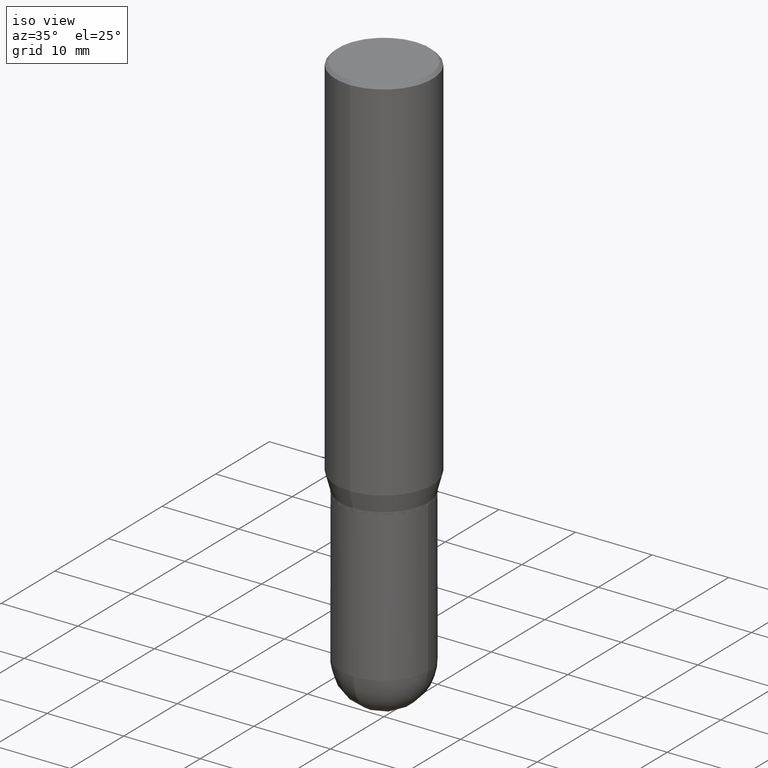
[diagram: clean part render]
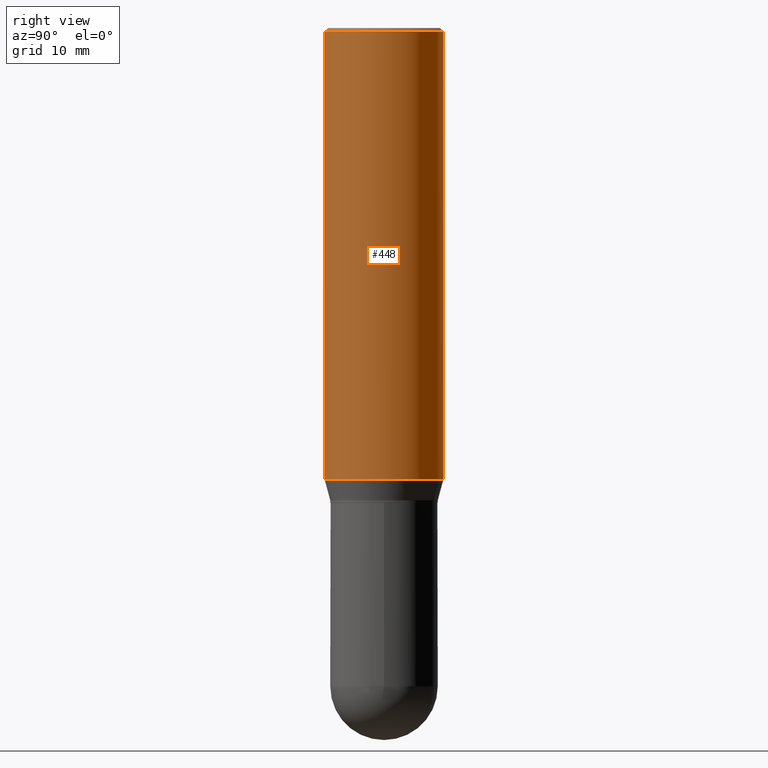
[diagram: tour spotlight — one face highlighted and labeled with its STEP entity id]
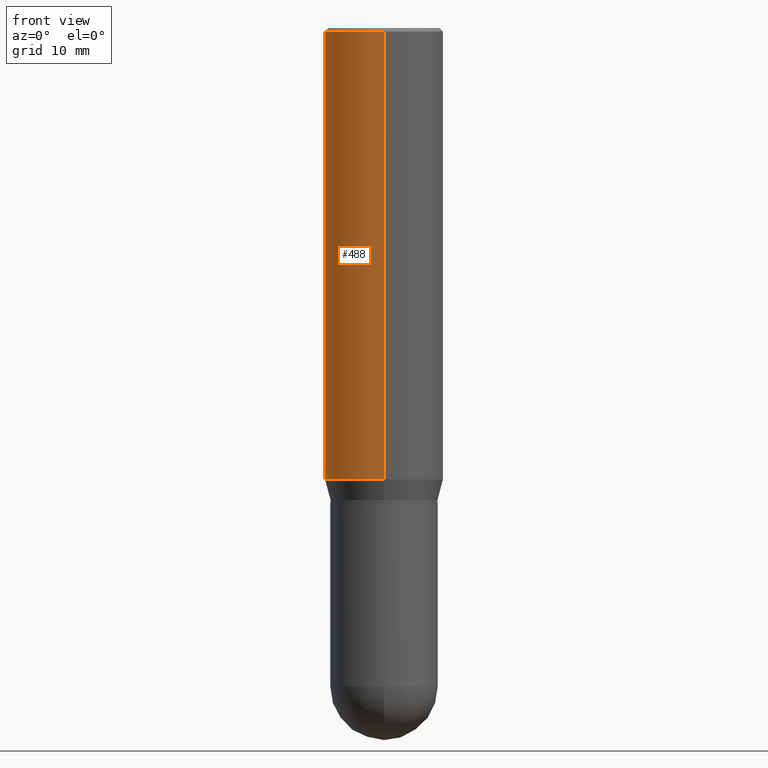
[diagram: tour spotlight — one face highlighted and labeled with its STEP entity id]
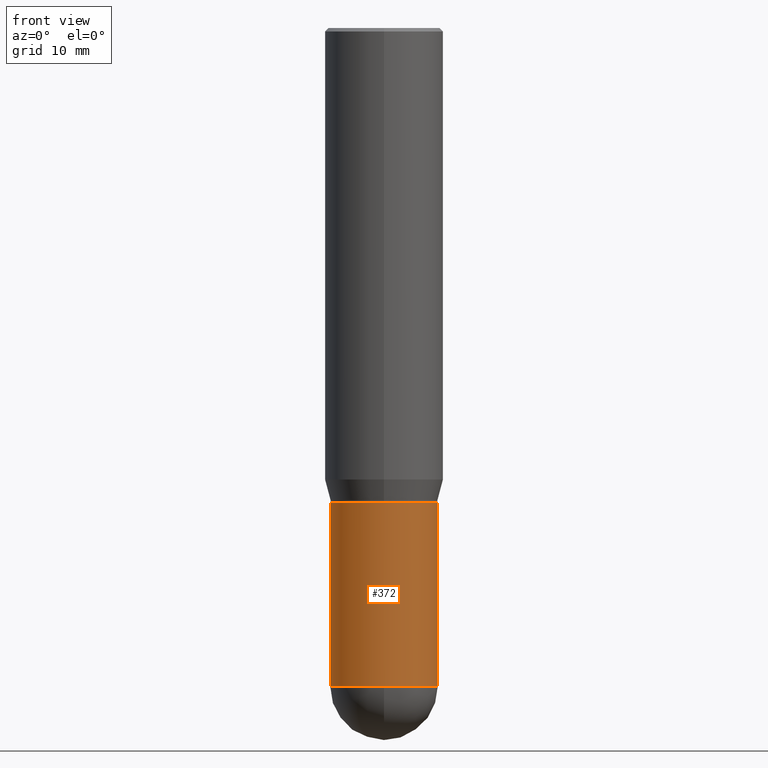
[diagram: tour spotlight — one face highlighted and labeled with its STEP entity id]
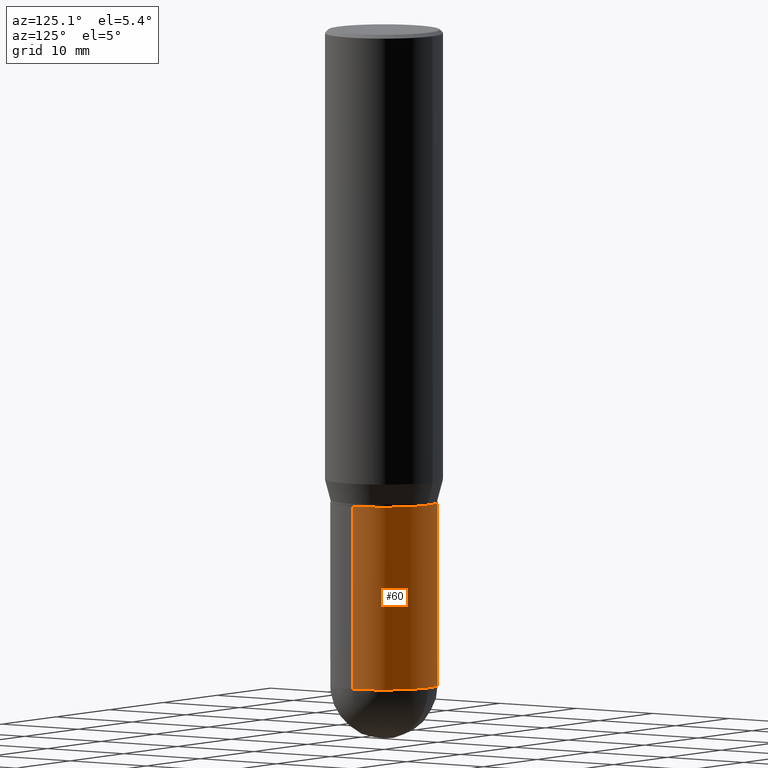
[diagram: tour spotlight — one face highlighted and labeled with its STEP entity id]
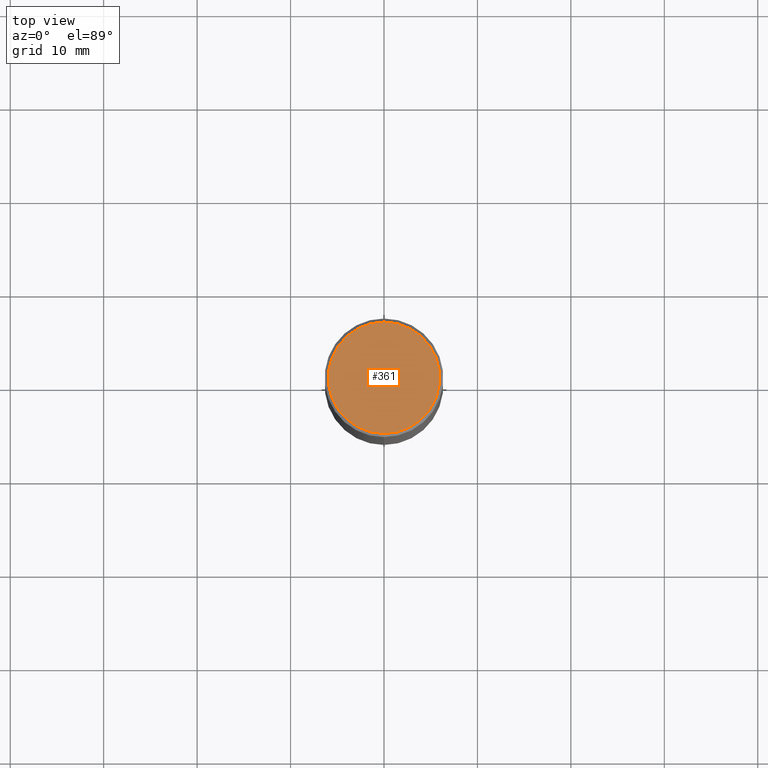
[diagram: tour spotlight — one face highlighted and labeled with its STEP entity id]
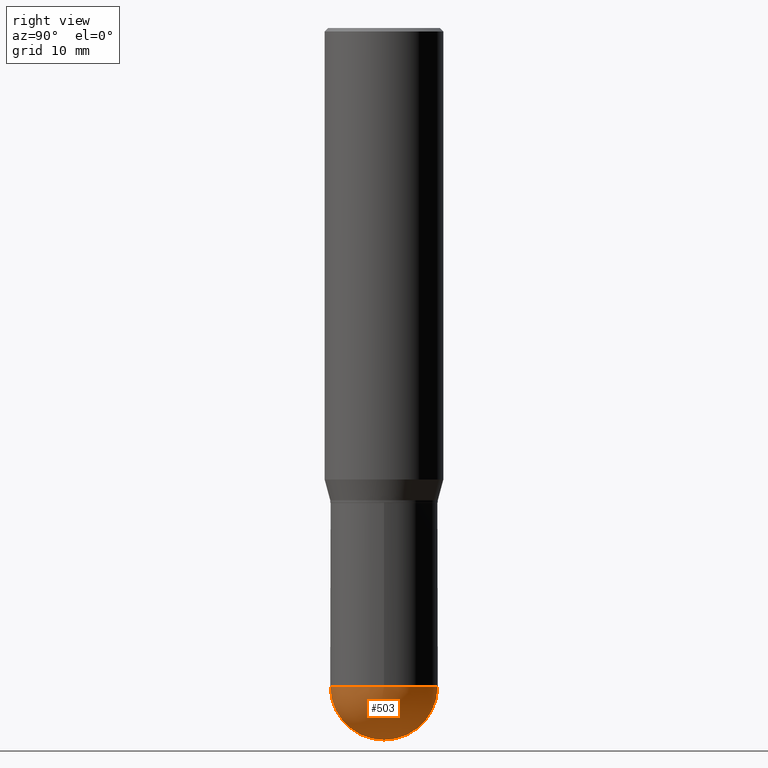
[diagram: tour spotlight — one face highlighted and labeled with its STEP entity id]
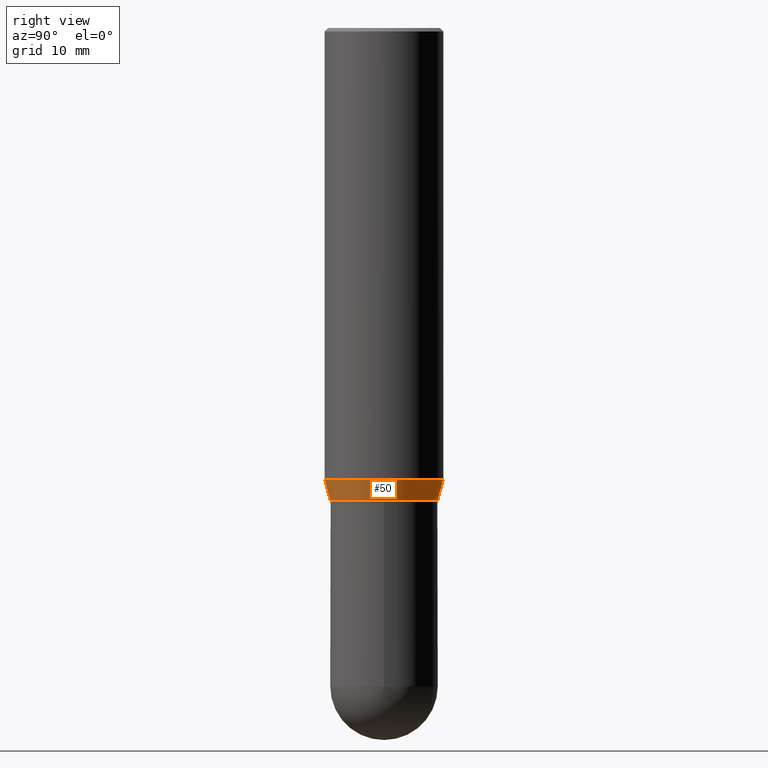
[diagram: tour spotlight — one face highlighted and labeled with its STEP entity id]
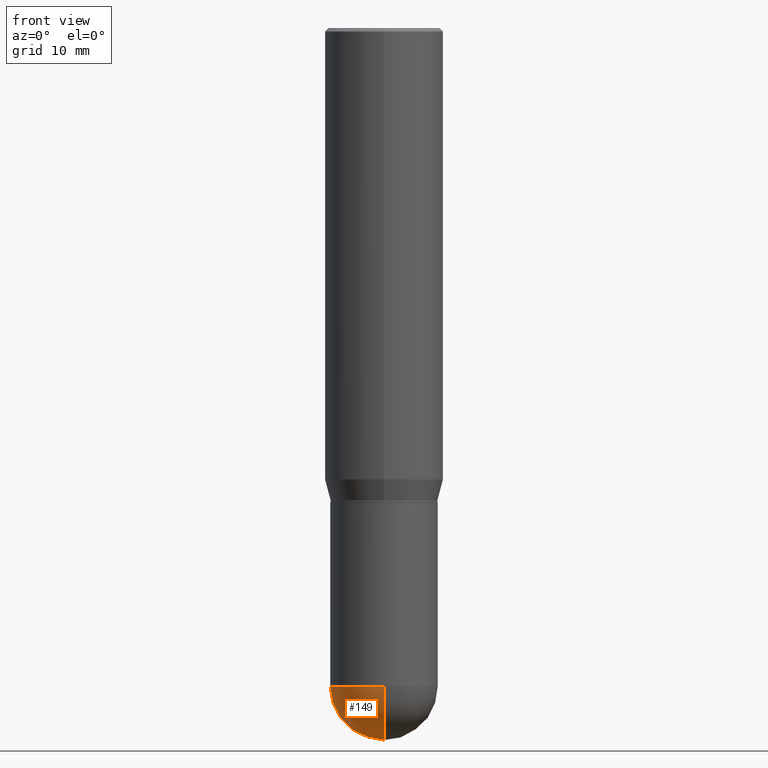
[diagram: tour spotlight — one face highlighted and labeled with its STEP entity id]
A machine part: a face-by-face anatomy tour. The part has 17 B-rep faces; the first image is the clean iso view, then the 8 largest visible faces are spotlighted one at a time (largest first), each with its STEP entity span.

Face 1 — right view, entity #448. In plain terms, the highlighted cylindrical surface (partial cylindrical patch) has radius 6.35 mm, axis along (-0, 0, 1).
Definition (entity closure, byte-faithful):
#14 = EDGE_LOOP ( 'NONE', ( #251, #129, #88, #284 ) ) ;
#38 = DIRECTION ( 'NONE',  ( -2.445835289349632530E-29, 3.490956514092661325E-15, 1.000000000000000000 ) ) ;
#45 = FACE_OUTER_BOUND ( 'NONE', #14, .T. ) ;
#66 = LINE ( 'NONE', #221, #108 ) ;
#69 = CARTESIAN_POINT ( 'NONE',  ( -1.745740669421565889E-15, -0.2500000000000000555, -0.01499999999999927953 ) ) ;
#87 = CARTESIAN_POINT ( 'NONE',  ( 4.653161058064362785E-29, -6.641486848074505255E-15, -1.902483408562510414 ) ) ;
#88 = ORIENTED_EDGE ( 'NONE', *, *, #473, .F. ) ;
#108 = VECTOR ( 'NONE', #507, 39.37007874015748143 ) ;
#109 = EDGE_CURVE ( 'NONE', #135, #319, #418, .T. ) ;
#112 = CARTESIAN_POINT ( 'NONE',  ( 1.776356839400296613E-15, 0.2499999999999933664, -1.902483408562511302 ) ) ;
#116 = CARTESIAN_POINT ( 'NONE',  ( 1.776356839400250267E-15, 0.2500000000000000000, -8.727391285231653312E-16 ) ) ;
#117 = AXIS2_PLACEMENT_3D ( 'NONE', #87, #275, #167 ) ;
#118 = CYLINDRICAL_SURFACE ( 'NONE', #306, 0.2500000000000000000 ) ;
#121 = DIRECTION ( 'NONE',  ( -2.445835289349632530E-29, 3.490956514092661325E-15, 1.000000000000000000 ) ) ;
#129 = ORIENTED_EDGE ( 'NONE', *, *, #109, .T. ) ;
#131 = EDGE_CURVE ( 'NONE', #313, #170, #66, .T. ) ;
#135 = VERTEX_POINT ( 'NONE', #112 ) ;
#167 = DIRECTION ( 'NONE',  ( -6.982962677686265922E-15, -1.000000000000000000, 3.278217592397115862E-15 ) ) ;
#170 = VERTEX_POINT ( 'NONE', #69 ) ;
#203 = AXIS2_PLACEMENT_3D ( 'NONE', #272, #121, #432 ) ;
#220 = CARTESIAN_POINT ( 'NONE',  ( -1.745740669421519543E-15, -0.2500000000000066058, -1.902483408562509748 ) ) ;
#221 = CARTESIAN_POINT ( 'NONE',  ( -1.745740669421566480E-15, -0.2500000000000000000, 8.727391285231653312E-16 ) ) ;
#245 = EDGE_CURVE ( 'NONE', #313, #135, #468, .T. ) ;
#251 = ORIENTED_EDGE ( 'NONE', *, *, #245, .T. ) ;
#272 = CARTESIAN_POINT ( 'NONE',  ( 3.668752934024485440E-31, -5.236434771139045457E-17, -0.01500000000000015210 ) ) ;
#275 = DIRECTION ( 'NONE',  ( -2.445835289349632530E-29, 3.490956514092661325E-15, 1.000000000000000000 ) ) ;
#281 = VECTOR ( 'NONE', #498, 39.37007874015748143 ) ;
#284 = ORIENTED_EDGE ( 'NONE', *, *, #131, .F. ) ;
#306 = AXIS2_PLACEMENT_3D ( 'NONE', #312, #38, #472 ) ;
#312 = CARTESIAN_POINT ( 'NONE',  ( 0.000000000000000000, 0.000000000000000000, 0.000000000000000000 ) ) ;
#313 = VERTEX_POINT ( 'NONE', #220 ) ;
#319 = VERTEX_POINT ( 'NONE', #454 ) ;
#404 = CIRCLE ( 'NONE', #203, 0.2500000000000000000 ) ;
#418 = LINE ( 'NONE', #116, #281 ) ;
#432 = DIRECTION ( 'NONE',  ( -6.982962677686265922E-15, -1.000000000000000000, 3.491643216902136408E-15 ) ) ;
#448 = ADVANCED_FACE ( 'NONE', ( #45 ), #118, .T. ) ;
#454 = CARTESIAN_POINT ( 'NONE',  ( 1.776356839400297007E-15, 0.2499999999999999167, -0.01500000000000102467 ) ) ;
#468 = CIRCLE ( 'NONE', #117, 0.2500000000000000000 ) ;
#472 = DIRECTION ( 'NONE',  ( -6.982962677686265922E-15, -1.000000000000000000, 3.490956514092661325E-15 ) ) ;
#473 = EDGE_CURVE ( 'NONE', #170, #319, #404, .T. ) ;
#498 = DIRECTION ( 'NONE',  ( -2.445835289349632811E-29, 3.490956514092661325E-15, 1.000000000000000000 ) ) ;
#507 = DIRECTION ( 'NONE',  ( -2.445835289349632811E-29, 3.490956514092661325E-15, 1.000000000000000000 ) ) ;

Face 2 — front view, entity #488. In plain terms, the highlighted cylindrical surface (partial cylindrical patch) has radius 6.35 mm, axis along (-0, 0, 1).
Definition (entity closure, byte-faithful):
#3 = CYLINDRICAL_SURFACE ( 'NONE', #443, 0.2500000000000000000 ) ;
#4 = DIRECTION ( 'NONE',  ( -6.982962677686265922E-15, -1.000000000000000000, 3.491643216902136408E-15 ) ) ;
#33 = DIRECTION ( 'NONE',  ( -2.445835289349632530E-29, 3.490956514092661325E-15, 1.000000000000000000 ) ) ;
#41 = CARTESIAN_POINT ( 'NONE',  ( 3.668752934024485440E-31, -5.236434771139045457E-17, -0.01500000000000015210 ) ) ;
#64 = AXIS2_PLACEMENT_3D ( 'NONE', #189, #33, #257 ) ;
#66 = LINE ( 'NONE', #221, #108 ) ;
#69 = CARTESIAN_POINT ( 'NONE',  ( -1.745740669421565889E-15, -0.2500000000000000555, -0.01499999999999927953 ) ) ;
#74 = FACE_OUTER_BOUND ( 'NONE', #490, .T. ) ;
#76 = DIRECTION ( 'NONE',  ( -2.445835289349632530E-29, 3.490956514092661325E-15, 1.000000000000000000 ) ) ;
#80 = AXIS2_PLACEMENT_3D ( 'NONE', #41, #401, #4 ) ;
#108 = VECTOR ( 'NONE', #507, 39.37007874015748143 ) ;
#109 = EDGE_CURVE ( 'NONE', #135, #319, #418, .T. ) ;
#110 = CIRCLE ( 'NONE', #64, 0.2500000000000000000 ) ;
#112 = CARTESIAN_POINT ( 'NONE',  ( 1.776356839400296613E-15, 0.2499999999999933664, -1.902483408562511302 ) ) ;
#116 = CARTESIAN_POINT ( 'NONE',  ( 1.776356839400250267E-15, 0.2500000000000000000, -8.727391285231653312E-16 ) ) ;
#131 = EDGE_CURVE ( 'NONE', #313, #170, #66, .T. ) ;
#135 = VERTEX_POINT ( 'NONE', #112 ) ;
#162 = ORIENTED_EDGE ( 'NONE', *, *, #253, .F. ) ;
#163 = DIRECTION ( 'NONE',  ( -6.982962677686265922E-15, -1.000000000000000000, 3.490956514092661325E-15 ) ) ;
#170 = VERTEX_POINT ( 'NONE', #69 ) ;
#189 = CARTESIAN_POINT ( 'NONE',  ( 4.653161058064362785E-29, -6.641486848074505255E-15, -1.902483408562510414 ) ) ;
#220 = CARTESIAN_POINT ( 'NONE',  ( -1.745740669421519543E-15, -0.2500000000000066058, -1.902483408562509748 ) ) ;
#221 = CARTESIAN_POINT ( 'NONE',  ( -1.745740669421566480E-15, -0.2500000000000000000, 8.727391285231653312E-16 ) ) ;
#227 = CARTESIAN_POINT ( 'NONE',  ( 0.000000000000000000, 0.000000000000000000, 0.000000000000000000 ) ) ;
#253 = EDGE_CURVE ( 'NONE', #319, #170, #392, .T. ) ;
#257 = DIRECTION ( 'NONE',  ( -6.982962677686265922E-15, -1.000000000000000000, 3.278217592397115862E-15 ) ) ;
#281 = VECTOR ( 'NONE', #498, 39.37007874015748143 ) ;
#313 = VERTEX_POINT ( 'NONE', #220 ) ;
#319 = VERTEX_POINT ( 'NONE', #454 ) ;
#329 = EDGE_CURVE ( 'NONE', #135, #313, #110, .T. ) ;
#371 = ORIENTED_EDGE ( 'NONE', *, *, #109, .F. ) ;
#391 = ORIENTED_EDGE ( 'NONE', *, *, #329, .T. ) ;
#392 = CIRCLE ( 'NONE', #80, 0.2500000000000000000 ) ;
#401 = DIRECTION ( 'NONE',  ( -2.445835289349632530E-29, 3.490956514092661325E-15, 1.000000000000000000 ) ) ;
#418 = LINE ( 'NONE', #116, #281 ) ;
#443 = AXIS2_PLACEMENT_3D ( 'NONE', #227, #76, #163 ) ;
#450 = ORIENTED_EDGE ( 'NONE', *, *, #131, .T. ) ;
#454 = CARTESIAN_POINT ( 'NONE',  ( 1.776356839400297007E-15, 0.2499999999999999167, -0.01500000000000102467 ) ) ;
#488 = ADVANCED_FACE ( 'NONE', ( #74 ), #3, .T. ) ;
#490 = EDGE_LOOP ( 'NONE', ( #371, #391, #450, #162 ) ) ;
#498 = DIRECTION ( 'NONE',  ( -2.445835289349632811E-29, 3.490956514092661325E-15, 1.000000000000000000 ) ) ;
#507 = DIRECTION ( 'NONE',  ( -2.445835289349632811E-29, 3.490956514092661325E-15, 1.000000000000000000 ) ) ;

Face 3 — front view, entity #372. In plain terms, the highlighted cylindrical surface (partial cylindrical patch) has radius 5.7544 mm, axis along (-0, 0, 1).
Definition (entity closure, byte-faithful):
#12 = CARTESIAN_POINT ( 'NONE',  ( 6.782385460514168389E-29, -9.683448919214523504E-15, -2.773450000000000415 ) ) ;
#28 = CARTESIAN_POINT ( 'NONE',  ( 0.2265500000000000291, -8.564952872316116075E-15, -2.000000000000000444 ) ) ;
#35 = DIRECTION ( 'NONE',  ( -2.445468806185136877E-29, 3.491481338843145188E-15, 1.000000000000000000 ) ) ;
#40 = CIRCLE ( 'NONE', #430, 0.2265500000000000291 ) ;
#42 = DIRECTION ( 'NONE',  ( 1.000000000000000000, -6.982962677686266711E-15, 0.000000000000000000 ) ) ;
#83 = DIRECTION ( 'NONE',  ( -2.445468806185136877E-29, 3.491481338843145188E-15, 1.000000000000000000 ) ) ;
#86 = LINE ( 'NONE', #230, #477 ) ;
#105 = ORIENTED_EDGE ( 'NONE', *, *, #209, .F. ) ;
#128 = DIRECTION ( 'NONE',  ( -2.445468806185136597E-29, 3.491481338843145583E-15, 1.000000000000000000 ) ) ;
#134 = ORIENTED_EDGE ( 'NONE', *, *, #377, .F. ) ;
#143 = AXIS2_PLACEMENT_3D ( 'NONE', #436, #228, #388 ) ;
#147 = FACE_OUTER_BOUND ( 'NONE', #242, .T. ) ;
#159 = CARTESIAN_POINT ( 'NONE',  ( -0.2265500000000000291, -6.723471230585900551E-15, -2.000000000000000444 ) ) ;
#197 = CARTESIAN_POINT ( 'NONE',  ( -1.609734567864438547E-15, -0.2265500000000096603, -2.773449999999999971 ) ) ;
#199 = ORIENTED_EDGE ( 'NONE', *, *, #485, .T. ) ;
#201 = DIRECTION ( 'NONE',  ( -2.445468806185136597E-29, 3.491481338843145583E-15, 1.000000000000000000 ) ) ;
#209 = EDGE_CURVE ( 'NONE', #278, #363, #510, .T. ) ;
#222 = DIRECTION ( 'NONE',  ( 1.000000000000000000, -6.982962677686266711E-15, 4.876176775795935793E-29 ) ) ;
#225 = VECTOR ( 'NONE', #35, 39.37007874015748143 ) ;
#228 = DIRECTION ( 'NONE',  ( -2.445468806185136597E-29, 3.491481338843145583E-15, 1.000000000000000000 ) ) ;
#230 = CARTESIAN_POINT ( 'NONE',  ( 0.2265500000000000291, -1.581990194629823924E-15, 1.104697848556569421E-29 ) ) ;
#242 = EDGE_LOOP ( 'NONE', ( #134, #199, #408, #455, #105 ) ) ;
#250 = AXIS2_PLACEMENT_3D ( 'NONE', #271, #201, #42 ) ;
#270 = EDGE_CURVE ( 'NONE', #415, #445, #40, .T. ) ;
#271 = CARTESIAN_POINT ( 'NONE',  ( 6.782385460514168389E-29, -9.683448919214523504E-15, -2.773450000000000415 ) ) ;
#276 = VERTEX_POINT ( 'NONE', #511 ) ;
#278 = VERTEX_POINT ( 'NONE', #159 ) ;
#294 = CARTESIAN_POINT ( 'NONE',  ( -0.2265500000000000291, 1.609734567864507178E-15, -1.114384744697249003E-29 ) ) ;
#317 = CARTESIAN_POINT ( 'NONE',  ( 0.2265500000000000291, -9.915195993080232639E-15, -2.773450000000000415 ) ) ;
#339 = CIRCLE ( 'NONE', #250, 0.2265500000000000291 ) ;
#341 = CYLINDRICAL_SURFACE ( 'NONE', #459, 0.2265500000000000291 ) ;
#345 = DIRECTION ( 'NONE',  ( 1.000000000000000000, -6.982962677686266711E-15, 0.000000000000000000 ) ) ;
#363 = VERTEX_POINT ( 'NONE', #28 ) ;
#372 = ADVANCED_FACE ( 'NONE', ( #147 ), #341, .T. ) ;
#377 = EDGE_CURVE ( 'NONE', #276, #278, #386, .T. ) ;
#386 = LINE ( 'NONE', #294, #225 ) ;
#388 = DIRECTION ( 'NONE',  ( 1.000000000000000000, -6.982962677686266711E-15, 0.000000000000000000 ) ) ;
#408 = ORIENTED_EDGE ( 'NONE', *, *, #270, .T. ) ;
#415 = VERTEX_POINT ( 'NONE', #197 ) ;
#430 = AXIS2_PLACEMENT_3D ( 'NONE', #12, #128, #345 ) ;
#436 = CARTESIAN_POINT ( 'NONE',  ( 4.890937612370273754E-29, -6.982962677686291954E-15, -2.000000000000000444 ) ) ;
#445 = VERTEX_POINT ( 'NONE', #317 ) ;
#455 = ORIENTED_EDGE ( 'NONE', *, *, #509, .T. ) ;
#457 = DIRECTION ( 'NONE',  ( -2.445468806185136597E-29, 3.491481338843145583E-15, 1.000000000000000000 ) ) ;
#459 = AXIS2_PLACEMENT_3D ( 'NONE', #504, #457, #222 ) ;
#477 = VECTOR ( 'NONE', #83, 39.37007874015748143 ) ;
#485 = EDGE_CURVE ( 'NONE', #276, #415, #339, .T. ) ;
#504 = CARTESIAN_POINT ( 'NONE',  ( 0.000000000000000000, 0.000000000000000000, 0.000000000000000000 ) ) ;
#509 = EDGE_CURVE ( 'NONE', #445, #363, #86, .T. ) ;
#510 = CIRCLE ( 'NONE', #143, 0.2265500000000000291 ) ;
#511 = CARTESIAN_POINT ( 'NONE',  ( -0.2265500000000000291, -6.723471230585900551E-15, -2.773450000000000415 ) ) ;

Face 4 — auxiliary view, entity #60. In plain terms, the highlighted cylindrical surface (partial cylindrical patch) has radius 5.7544 mm, axis along (-0, 0, 1).
Definition (entity closure, byte-faithful):
#1 = DIRECTION ( 'NONE',  ( -2.445468806185136597E-29, 3.491481338843145583E-15, 1.000000000000000000 ) ) ;
#8 = CIRCLE ( 'NONE', #367, 0.2265500000000000291 ) ;
#19 = VERTEX_POINT ( 'NONE', #212 ) ;
#23 = AXIS2_PLACEMENT_3D ( 'NONE', #300, #304, #154 ) ;
#28 = CARTESIAN_POINT ( 'NONE',  ( 0.2265500000000000291, -8.564952872316116075E-15, -2.000000000000000444 ) ) ;
#35 = DIRECTION ( 'NONE',  ( -2.445468806185136877E-29, 3.491481338843145188E-15, 1.000000000000000000 ) ) ;
#46 = ORIENTED_EDGE ( 'NONE', *, *, #470, .T. ) ;
#53 = EDGE_CURVE ( 'NONE', #363, #278, #239, .T. ) ;
#60 = ADVANCED_FACE ( 'NONE', ( #218 ), #293, .T. ) ;
#83 = DIRECTION ( 'NONE',  ( -2.445468806185136877E-29, 3.491481338843145188E-15, 1.000000000000000000 ) ) ;
#86 = LINE ( 'NONE', #230, #477 ) ;
#91 = AXIS2_PLACEMENT_3D ( 'NONE', #474, #193, #351 ) ;
#96 = ORIENTED_EDGE ( 'NONE', *, *, #423, .T. ) ;
#98 = ORIENTED_EDGE ( 'NONE', *, *, #377, .T. ) ;
#120 = CARTESIAN_POINT ( 'NONE',  ( 6.782385460514168389E-29, -9.683448919214523504E-15, -2.773450000000000415 ) ) ;
#151 = CARTESIAN_POINT ( 'NONE',  ( 0.000000000000000000, 0.000000000000000000, 0.000000000000000000 ) ) ;
#154 = DIRECTION ( 'NONE',  ( 1.000000000000000000, -6.982962677686266711E-15, 0.000000000000000000 ) ) ;
#159 = CARTESIAN_POINT ( 'NONE',  ( -0.2265500000000000291, -6.723471230585900551E-15, -2.000000000000000444 ) ) ;
#172 = EDGE_LOOP ( 'NONE', ( #96, #98, #434, #346, #46 ) ) ;
#193 = DIRECTION ( 'NONE',  ( -2.445468806185136597E-29, 3.491481338843145583E-15, 1.000000000000000000 ) ) ;
#212 = CARTESIAN_POINT ( 'NONE',  ( 1.581990194629891371E-15, 0.2265499999999903147, -2.773450000000000859 ) ) ;
#218 = FACE_OUTER_BOUND ( 'NONE', #172, .T. ) ;
#225 = VECTOR ( 'NONE', #35, 39.37007874015748143 ) ;
#230 = CARTESIAN_POINT ( 'NONE',  ( 0.2265500000000000291, -1.581990194629823924E-15, 1.104697848556569421E-29 ) ) ;
#238 = DIRECTION ( 'NONE',  ( 1.000000000000000000, -6.982962677686266711E-15, 0.000000000000000000 ) ) ;
#239 = CIRCLE ( 'NONE', #23, 0.2265500000000000291 ) ;
#263 = DIRECTION ( 'NONE',  ( 1.000000000000000000, -6.982962677686266711E-15, 4.876176775795935793E-29 ) ) ;
#276 = VERTEX_POINT ( 'NONE', #511 ) ;
#278 = VERTEX_POINT ( 'NONE', #159 ) ;
#293 = CYLINDRICAL_SURFACE ( 'NONE', #451, 0.2265500000000000291 ) ;
#294 = CARTESIAN_POINT ( 'NONE',  ( -0.2265500000000000291, 1.609734567864507178E-15, -1.114384744697249003E-29 ) ) ;
#300 = CARTESIAN_POINT ( 'NONE',  ( 4.890937612370273754E-29, -6.982962677686291954E-15, -2.000000000000000444 ) ) ;
#304 = DIRECTION ( 'NONE',  ( -2.445468806185136597E-29, 3.491481338843145583E-15, 1.000000000000000000 ) ) ;
#315 = CIRCLE ( 'NONE', #91, 0.2265500000000000291 ) ;
#317 = CARTESIAN_POINT ( 'NONE',  ( 0.2265500000000000291, -9.915195993080232639E-15, -2.773450000000000415 ) ) ;
#346 = ORIENTED_EDGE ( 'NONE', *, *, #509, .F. ) ;
#351 = DIRECTION ( 'NONE',  ( 1.000000000000000000, -6.982962677686266711E-15, 0.000000000000000000 ) ) ;
#363 = VERTEX_POINT ( 'NONE', #28 ) ;
#367 = AXIS2_PLACEMENT_3D ( 'NONE', #120, #1, #238 ) ;
#377 = EDGE_CURVE ( 'NONE', #276, #278, #386, .T. ) ;
#381 = DIRECTION ( 'NONE',  ( -2.445468806185136597E-29, 3.491481338843145583E-15, 1.000000000000000000 ) ) ;
#386 = LINE ( 'NONE', #294, #225 ) ;
#423 = EDGE_CURVE ( 'NONE', #19, #276, #8, .T. ) ;
#434 = ORIENTED_EDGE ( 'NONE', *, *, #53, .F. ) ;
#445 = VERTEX_POINT ( 'NONE', #317 ) ;
#451 = AXIS2_PLACEMENT_3D ( 'NONE', #151, #381, #263 ) ;
#470 = EDGE_CURVE ( 'NONE', #445, #19, #315, .T. ) ;
#474 = CARTESIAN_POINT ( 'NONE',  ( 6.782385460514168389E-29, -9.683448919214523504E-15, -2.773450000000000415 ) ) ;
#477 = VECTOR ( 'NONE', #83, 39.37007874015748143 ) ;
#509 = EDGE_CURVE ( 'NONE', #445, #363, #86, .T. ) ;
#511 = CARTESIAN_POINT ( 'NONE',  ( -0.2265500000000000291, -6.723471230585900551E-15, -2.773450000000000415 ) ) ;

Face 5 — top view, entity #361. In plain terms, the highlighted planar face has unit normal (0, -0, -1).
Definition (entity closure, byte-faithful):
#49 = ORIENTED_EDGE ( 'NONE', *, *, #280, .T. ) ;
#104 = CARTESIAN_POINT ( 'NONE',  ( 3.715623983178007030E-45, -5.303334122488396270E-31, -1.519163616355385119E-16 ) ) ;
#122 = EDGE_LOOP ( 'NONE', ( #177, #49 ) ) ;
#145 = CARTESIAN_POINT ( 'NONE',  ( 3.715623983178007030E-45, -5.303334122488396270E-31, -1.519163616355385119E-16 ) ) ;
#150 = DIRECTION ( 'NONE',  ( 2.445835289349631970E-29, -3.490956514092661325E-15, -1.000000000000000000 ) ) ;
#177 = ORIENTED_EDGE ( 'NONE', *, *, #385, .T. ) ;
#180 = DIRECTION ( 'NONE',  ( -6.982962677686266711E-15, -1.000000000000000000, 3.490956514092661325E-15 ) ) ;
#196 = VERTEX_POINT ( 'NONE', #502 ) ;
#247 = VERTEX_POINT ( 'NONE', #318 ) ;
#262 = DIRECTION ( 'NONE',  ( -2.445835289349632530E-29, 3.490956514092661325E-15, 1.000000000000000000 ) ) ;
#266 = CARTESIAN_POINT ( 'NONE',  ( 1.640996229256272519E-15, 0.2349999999999999867, -8.963329616295446195E-16 ) ) ;
#273 = AXIS2_PLACEMENT_3D ( 'NONE', #145, #262, #380 ) ;
#280 = EDGE_CURVE ( 'NONE', #247, #196, #478, .T. ) ;
#283 = AXIS2_PLACEMENT_3D ( 'NONE', #104, #463, #180 ) ;
#298 = FACE_OUTER_BOUND ( 'NONE', #122, .T. ) ;
#318 = CARTESIAN_POINT ( 'NONE',  ( -1.663670764459595899E-15, -0.2349999999999999867, 6.684584191762368393E-16 ) ) ;
#335 = PLANE ( 'NONE',  #347 ) ;
#347 = AXIS2_PLACEMENT_3D ( 'NONE', #266, #150, #497 ) ;
#356 = CIRCLE ( 'NONE', #273, 0.2349999999999999867 ) ;
#361 = ADVANCED_FACE ( 'NONE', ( #298 ), #335, .F. ) ;
#380 = DIRECTION ( 'NONE',  ( -6.982962677686266711E-15, -1.000000000000000000, 3.490956514092661325E-15 ) ) ;
#385 = EDGE_CURVE ( 'NONE', #196, #247, #356, .T. ) ;
#463 = DIRECTION ( 'NONE',  ( -2.445835289349632530E-29, 3.490956514092661325E-15, 1.000000000000000000 ) ) ;
#478 = CIRCLE ( 'NONE', #283, 0.2349999999999999867 ) ;
#497 = DIRECTION ( 'NONE',  ( 6.982962677686265922E-15, 1.000000000000000000, -3.490956514092661325E-15 ) ) ;
#502 = CARTESIAN_POINT ( 'NONE',  ( 1.693368449338919598E-15, 0.2349999999999999867, -9.722911424473138138E-16 ) ) ;

Face 6 — right view, entity #503. In plain terms, the highlighted spherical surface has radius 5.7544 mm.
Definition (entity closure, byte-faithful):
#12 = CARTESIAN_POINT ( 'NONE',  ( 6.782385460514168389E-29, -9.683448919214523504E-15, -2.773450000000000415 ) ) ;
#15 = ORIENTED_EDGE ( 'NONE', *, *, #84, .T. ) ;
#19 = VERTEX_POINT ( 'NONE', #212 ) ;
#24 = AXIS2_PLACEMENT_3D ( 'NONE', #26, #71, #114 ) ;
#26 = CARTESIAN_POINT ( 'NONE',  ( 6.784390825462294501E-29, -9.680577122470524352E-15, -2.773450000000000415 ) ) ;
#40 = CIRCLE ( 'NONE', #430, 0.2265500000000000291 ) ;
#54 = ORIENTED_EDGE ( 'NONE', *, *, #322, .F. ) ;
#59 = ORIENTED_EDGE ( 'NONE', *, *, #470, .F. ) ;
#71 = DIRECTION ( 'NONE',  ( -1.000000000000000000, 7.105427357601001070E-15, -4.926315508542082329E-29 ) ) ;
#79 = CIRCLE ( 'NONE', #305, 0.2265499999999999459 ) ;
#84 = EDGE_CURVE ( 'NONE', #440, #19, #79, .T. ) ;
#91 = AXIS2_PLACEMENT_3D ( 'NONE', #474, #193, #351 ) ;
#114 = DIRECTION ( 'NONE',  ( -7.105427357601000281E-15, -1.000000000000000000, 0.000000000000000000 ) ) ;
#128 = DIRECTION ( 'NONE',  ( -2.445468806185136597E-29, 3.491481338843145583E-15, 1.000000000000000000 ) ) ;
#193 = DIRECTION ( 'NONE',  ( -2.445468806185136597E-29, 3.491481338843145583E-15, 1.000000000000000000 ) ) ;
#197 = CARTESIAN_POINT ( 'NONE',  ( -1.609734567864438547E-15, -0.2265500000000096603, -2.773449999999999971 ) ) ;
#212 = CARTESIAN_POINT ( 'NONE',  ( 1.581990194629891371E-15, 0.2265499999999903147, -2.773450000000000859 ) ) ;
#219 = AXIS2_PLACEMENT_3D ( 'NONE', #344, #508, #439 ) ;
#270 = EDGE_CURVE ( 'NONE', #415, #445, #40, .T. ) ;
#274 = FACE_OUTER_BOUND ( 'NONE', #360, .T. ) ;
#295 = DIRECTION ( 'NONE',  ( 1.000000000000000000, -6.982962677686265922E-15, 4.883557194083112340E-29 ) ) ;
#305 = AXIS2_PLACEMENT_3D ( 'NONE', #336, #295, #458 ) ;
#315 = CIRCLE ( 'NONE', #91, 0.2265500000000000291 ) ;
#317 = CARTESIAN_POINT ( 'NONE',  ( 0.2265500000000000291, -9.915195993080232639E-15, -2.773450000000000415 ) ) ;
#322 = EDGE_CURVE ( 'NONE', #440, #415, #421, .T. ) ;
#336 = CARTESIAN_POINT ( 'NONE',  ( 6.784390825462294501E-29, -9.680577122470524352E-15, -2.773450000000000415 ) ) ;
#344 = CARTESIAN_POINT ( 'NONE',  ( 6.784390825462294501E-29, -9.680577122470524352E-15, -2.773450000000000415 ) ) ;
#345 = DIRECTION ( 'NONE',  ( 1.000000000000000000, -6.982962677686266711E-15, 0.000000000000000000 ) ) ;
#351 = DIRECTION ( 'NONE',  ( 1.000000000000000000, -6.982962677686266711E-15, 0.000000000000000000 ) ) ;
#353 = ORIENTED_EDGE ( 'NONE', *, *, #270, .F. ) ;
#360 = EDGE_LOOP ( 'NONE', ( #54, #15, #59, #353 ) ) ;
#415 = VERTEX_POINT ( 'NONE', #197 ) ;
#421 = CIRCLE ( 'NONE', #24, 0.2265499999999999459 ) ;
#430 = AXIS2_PLACEMENT_3D ( 'NONE', #12, #128, #345 ) ;
#439 = DIRECTION ( 'NONE',  ( 6.982962677686265922E-15, 1.000000000000000000, -2.411695425878847213E-15 ) ) ;
#440 = VERTEX_POINT ( 'NONE', #481 ) ;
#445 = VERTEX_POINT ( 'NONE', #317 ) ;
#458 = DIRECTION ( 'NONE',  ( 6.982962677686265133E-15, 1.000000000000000000, 0.000000000000000000 ) ) ;
#470 = EDGE_CURVE ( 'NONE', #445, #19, #315, .T. ) ;
#474 = CARTESIAN_POINT ( 'NONE',  ( 6.782385460514168389E-29, -9.683448919214523504E-15, -2.773450000000000415 ) ) ;
#475 = SPHERICAL_SURFACE ( 'NONE', #219, 0.2265499999999999459 ) ;
#481 = CARTESIAN_POINT ( 'NONE',  ( 7.348098679644216605E-29, -1.045770003316809804E-14, -3.000000000000000444 ) ) ;
#503 = ADVANCED_FACE ( 'NONE', ( #274 ), #475, .T. ) ;
#508 = DIRECTION ( 'NONE',  ( -1.000000000000000000, 6.982962677686265922E-15, -4.883557194083112901E-29 ) ) ;

Face 7 — right view, entity #50. In plain terms, the highlighted conical surface has half-angle 15 deg.
Definition (entity closure, byte-faithful):
#36 = LINE ( 'NONE', #156, #383 ) ;
#50 = ADVANCED_FACE ( 'NONE', ( #265 ), #314, .T. ) ;
#61 = ORIENTED_EDGE ( 'NONE', *, *, #115, .T. ) ;
#72 = DIRECTION ( 'NONE',  ( -6.982962677686265922E-15, -1.000000000000000000, 3.617543138818270030E-15 ) ) ;
#87 = CARTESIAN_POINT ( 'NONE',  ( 4.653161058064362785E-29, -6.641486848074505255E-15, -1.902483408562510414 ) ) ;
#90 = AXIS2_PLACEMENT_3D ( 'NONE', #190, #422, #72 ) ;
#107 = DIRECTION ( 'NONE',  ( 1.839019923739601893E-15, 0.2588190451025252359, 0.9659258262890670910 ) ) ;
#112 = CARTESIAN_POINT ( 'NONE',  ( 1.776356839400296613E-15, 0.2499999999999933664, -1.902483408562511302 ) ) ;
#115 = EDGE_CURVE ( 'NONE', #396, #135, #223, .T. ) ;
#117 = AXIS2_PLACEMENT_3D ( 'NONE', #87, #275, #167 ) ;
#135 = VERTEX_POINT ( 'NONE', #112 ) ;
#153 = CARTESIAN_POINT ( 'NONE',  ( 1.693045703632425956E-15, 0.2265499999999930347, -1.990000000000001101 ) ) ;
#156 = CARTESIAN_POINT ( 'NONE',  ( -1.581990194629774423E-15, -0.2265500000000069125, -1.989999999999999547 ) ) ;
#167 = DIRECTION ( 'NONE',  ( -6.982962677686265922E-15, -1.000000000000000000, 3.278217592397115862E-15 ) ) ;
#179 = EDGE_CURVE ( 'NONE', #213, #313, #36, .T. ) ;
#188 = AXIS2_PLACEMENT_3D ( 'NONE', #343, #342, #334 ) ;
#190 = CARTESIAN_POINT ( 'NONE',  ( 4.867212225805769554E-29, -6.947003463044396900E-15, -1.990000000000000435 ) ) ;
#191 = DIRECTION ( 'NONE',  ( -1.807323732225331717E-15, -0.2588190451025184080, 0.9659258262890689783 ) ) ;
#200 = EDGE_CURVE ( 'NONE', #213, #396, #249, .T. ) ;
#213 = VERTEX_POINT ( 'NONE', #359 ) ;
#220 = CARTESIAN_POINT ( 'NONE',  ( -1.745740669421519543E-15, -0.2500000000000066058, -1.902483408562509748 ) ) ;
#223 = LINE ( 'NONE', #461, #324 ) ;
#244 = ORIENTED_EDGE ( 'NONE', *, *, #179, .F. ) ;
#245 = EDGE_CURVE ( 'NONE', #313, #135, #468, .T. ) ;
#249 = CIRCLE ( 'NONE', #188, 0.2265499999999999736 ) ;
#265 = FACE_OUTER_BOUND ( 'NONE', #332, .T. ) ;
#275 = DIRECTION ( 'NONE',  ( -2.445835289349632530E-29, 3.490956514092661325E-15, 1.000000000000000000 ) ) ;
#313 = VERTEX_POINT ( 'NONE', #220 ) ;
#314 = CONICAL_SURFACE ( 'NONE', #90, 0.2265499999999999736, 0.2617993877991505181 ) ;
#324 = VECTOR ( 'NONE', #107, 39.37007874015748854 ) ;
#332 = EDGE_LOOP ( 'NONE', ( #416, #61, #484, #244 ) ) ;
#334 = DIRECTION ( 'NONE',  ( -6.982962677686265922E-15, -1.000000000000000000, 3.617543138818270030E-15 ) ) ;
#342 = DIRECTION ( 'NONE',  ( -2.445835289349632530E-29, 3.490956514092661325E-15, 1.000000000000000000 ) ) ;
#343 = CARTESIAN_POINT ( 'NONE',  ( 4.867212225805769554E-29, -6.947003463044396900E-15, -1.990000000000000435 ) ) ;
#359 = CARTESIAN_POINT ( 'NONE',  ( -1.581990194629774423E-15, -0.2265500000000069125, -1.989999999999999547 ) ) ;
#383 = VECTOR ( 'NONE', #191, 39.37007874015748854 ) ;
#396 = VERTEX_POINT ( 'NONE', #153 ) ;
#416 = ORIENTED_EDGE ( 'NONE', *, *, #200, .T. ) ;
#422 = DIRECTION ( 'NONE',  ( -2.445835289349632530E-29, 3.490956514092661325E-15, 1.000000000000000000 ) ) ;
#461 = CARTESIAN_POINT ( 'NONE',  ( 1.609734567864555299E-15, 0.2265499999999930347, -1.990000000000001101 ) ) ;
#468 = CIRCLE ( 'NONE', #117, 0.2500000000000000000 ) ;
#484 = ORIENTED_EDGE ( 'NONE', *, *, #245, .F. ) ;

Face 8 — front view, entity #149. In plain terms, the highlighted spherical surface has radius 5.7544 mm.
Definition (entity closure, byte-faithful):
#1 = DIRECTION ( 'NONE',  ( -2.445468806185136597E-29, 3.491481338843145583E-15, 1.000000000000000000 ) ) ;
#8 = CIRCLE ( 'NONE', #367, 0.2265500000000000291 ) ;
#19 = VERTEX_POINT ( 'NONE', #212 ) ;
#24 = AXIS2_PLACEMENT_3D ( 'NONE', #26, #71, #114 ) ;
#26 = CARTESIAN_POINT ( 'NONE',  ( 6.784390825462294501E-29, -9.680577122470524352E-15, -2.773450000000000415 ) ) ;
#31 = DIRECTION ( 'NONE',  ( -1.000000000000000000, 6.982962677686265922E-15, -4.883557194083112901E-29 ) ) ;
#42 = DIRECTION ( 'NONE',  ( 1.000000000000000000, -6.982962677686266711E-15, 0.000000000000000000 ) ) ;
#71 = DIRECTION ( 'NONE',  ( -1.000000000000000000, 7.105427357601001070E-15, -4.926315508542082329E-29 ) ) ;
#79 = CIRCLE ( 'NONE', #305, 0.2265499999999999459 ) ;
#84 = EDGE_CURVE ( 'NONE', #440, #19, #79, .T. ) ;
#114 = DIRECTION ( 'NONE',  ( -7.105427357601000281E-15, -1.000000000000000000, 0.000000000000000000 ) ) ;
#120 = CARTESIAN_POINT ( 'NONE',  ( 6.782385460514168389E-29, -9.683448919214523504E-15, -2.773450000000000415 ) ) ;
#139 = ORIENTED_EDGE ( 'NONE', *, *, #423, .F. ) ;
#149 = ADVANCED_FACE ( 'NONE', ( #379 ), #387, .T. ) ;
#197 = CARTESIAN_POINT ( 'NONE',  ( -1.609734567864438547E-15, -0.2265500000000096603, -2.773449999999999971 ) ) ;
#201 = DIRECTION ( 'NONE',  ( -2.445468806185136597E-29, 3.491481338843145583E-15, 1.000000000000000000 ) ) ;
#212 = CARTESIAN_POINT ( 'NONE',  ( 1.581990194629891371E-15, 0.2265499999999903147, -2.773450000000000859 ) ) ;
#235 = EDGE_LOOP ( 'NONE', ( #447, #406, #237, #139 ) ) ;
#237 = ORIENTED_EDGE ( 'NONE', *, *, #485, .F. ) ;
#238 = DIRECTION ( 'NONE',  ( 1.000000000000000000, -6.982962677686266711E-15, 0.000000000000000000 ) ) ;
#250 = AXIS2_PLACEMENT_3D ( 'NONE', #271, #201, #42 ) ;
#271 = CARTESIAN_POINT ( 'NONE',  ( 6.782385460514168389E-29, -9.683448919214523504E-15, -2.773450000000000415 ) ) ;
#276 = VERTEX_POINT ( 'NONE', #511 ) ;
#295 = DIRECTION ( 'NONE',  ( 1.000000000000000000, -6.982962677686265922E-15, 4.883557194083112340E-29 ) ) ;
#305 = AXIS2_PLACEMENT_3D ( 'NONE', #336, #295, #458 ) ;
#322 = EDGE_CURVE ( 'NONE', #440, #415, #421, .T. ) ;
#336 = CARTESIAN_POINT ( 'NONE',  ( 6.784390825462294501E-29, -9.680577122470524352E-15, -2.773450000000000415 ) ) ;
#339 = CIRCLE ( 'NONE', #250, 0.2265500000000000291 ) ;
#367 = AXIS2_PLACEMENT_3D ( 'NONE', #120, #1, #238 ) ;
#379 = FACE_OUTER_BOUND ( 'NONE', #235, .T. ) ;
#387 = SPHERICAL_SURFACE ( 'NONE', #476, 0.2265499999999999459 ) ;
#406 = ORIENTED_EDGE ( 'NONE', *, *, #322, .T. ) ;
#415 = VERTEX_POINT ( 'NONE', #197 ) ;
#421 = CIRCLE ( 'NONE', #24, 0.2265499999999999459 ) ;
#423 = EDGE_CURVE ( 'NONE', #19, #276, #8, .T. ) ;
#427 = DIRECTION ( 'NONE',  ( 6.982962677686265922E-15, 1.000000000000000000, -2.411695425878847213E-15 ) ) ;
#431 = CARTESIAN_POINT ( 'NONE',  ( 6.784390825462294501E-29, -9.680577122470524352E-15, -2.773450000000000415 ) ) ;
#440 = VERTEX_POINT ( 'NONE', #481 ) ;
#447 = ORIENTED_EDGE ( 'NONE', *, *, #84, .F. ) ;
#458 = DIRECTION ( 'NONE',  ( 6.982962677686265133E-15, 1.000000000000000000, 0.000000000000000000 ) ) ;
#476 = AXIS2_PLACEMENT_3D ( 'NONE', #431, #31, #427 ) ;
#481 = CARTESIAN_POINT ( 'NONE',  ( 7.348098679644216605E-29, -1.045770003316809804E-14, -3.000000000000000444 ) ) ;
#485 = EDGE_CURVE ( 'NONE', #276, #415, #339, .T. ) ;
#511 = CARTESIAN_POINT ( 'NONE',  ( -0.2265500000000000291, -6.723471230585900551E-15, -2.773450000000000415 ) ) ;